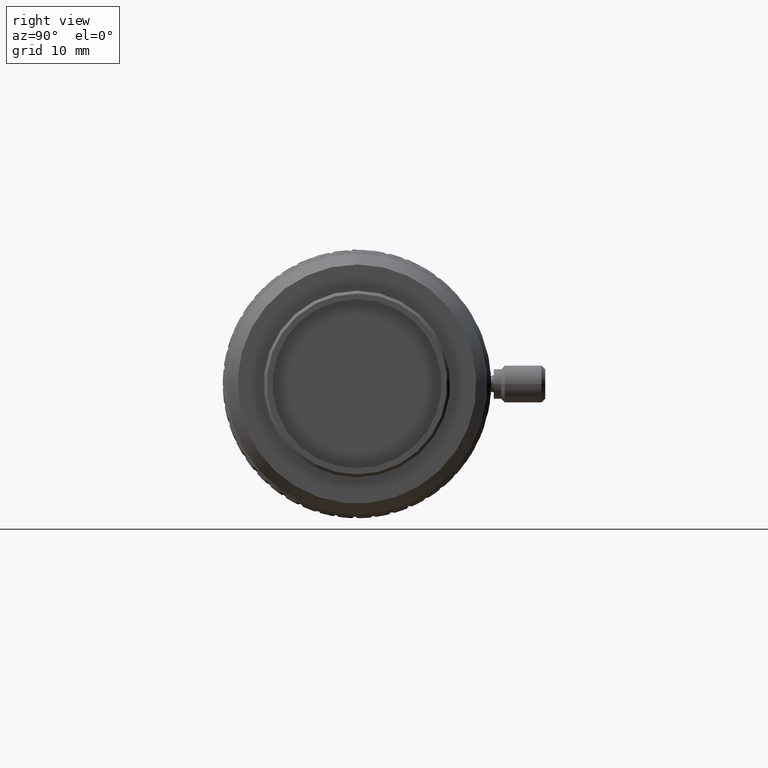
[diagram: clean part render]
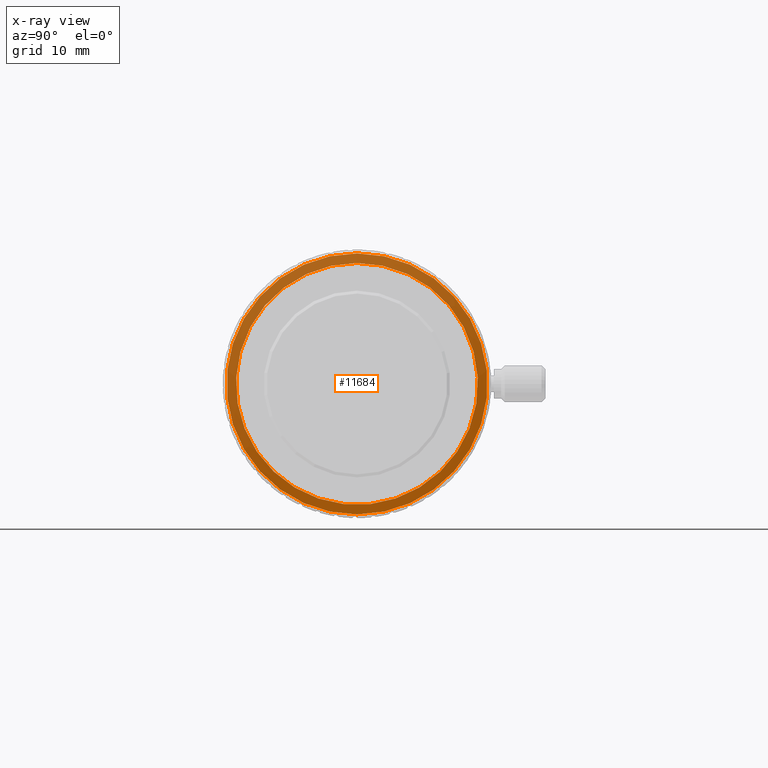
[diagram: x-ray — body ghosted, one internal face saturated and labeled with its STEP entity id]
A machine part, right view, then the same camera in x-ray: the body is ghosted and one INTERNAL B-rep face — a face not visible from any outside direction — is saturated and labeled: STEP entity #11684.
In plain terms, the highlighted planar face has unit normal (1, 0, 0).
Its self-contained STEP definition (entity closure, byte-faithful):
#2793=ORIENTED_EDGE('',*,*,#4910,.F.);
#2794=ORIENTED_EDGE('',*,*,#4909,.T.);
#4909=EDGE_CURVE('',#5922,#5922,#6532,.T.);
#4910=EDGE_CURVE('',#5923,#5923,#6533,.T.);
#5922=VERTEX_POINT('',#18664);
#5923=VERTEX_POINT('',#18667);
#6532=CIRCLE('',#12756,16.45);
#6533=CIRCLE('',#12758,17.75);
#7077=EDGE_LOOP('',(#2793));
#7078=EDGE_LOOP('',(#2794));
#7616=FACE_BOUND('',#7077,.T.);
#7617=FACE_BOUND('',#7078,.T.);
#8010=PLANE('',#12757);
#11684=ADVANCED_FACE('',(#7616,#7617),#8010,.T.);
#12756=AXIS2_PLACEMENT_3D('',#18663,#15326,#15327);
#12757=AXIS2_PLACEMENT_3D('',#18665,#15328,#15329);
#12758=AXIS2_PLACEMENT_3D('',#18666,#15330,#15331);
#15326=DIRECTION('',(-1.,0.,0.));
#15327=DIRECTION('',(0.,0.,1.));
#15328=DIRECTION('',(1.,0.,0.));
#15329=DIRECTION('',(0.,0.,-1.));
#15330=DIRECTION('',(-1.,0.,0.));
#15331=DIRECTION('',(0.,0.,1.));
#18663=CARTESIAN_POINT('',(-49.826,0.,0.));
#18664=CARTESIAN_POINT('',(-49.826,0.,16.45));
#18665=CARTESIAN_POINT('',(-49.826,0.,16.45));
#18666=CARTESIAN_POINT('',(-49.826,0.,0.));
#18667=CARTESIAN_POINT('',(-49.826,0.,17.75));